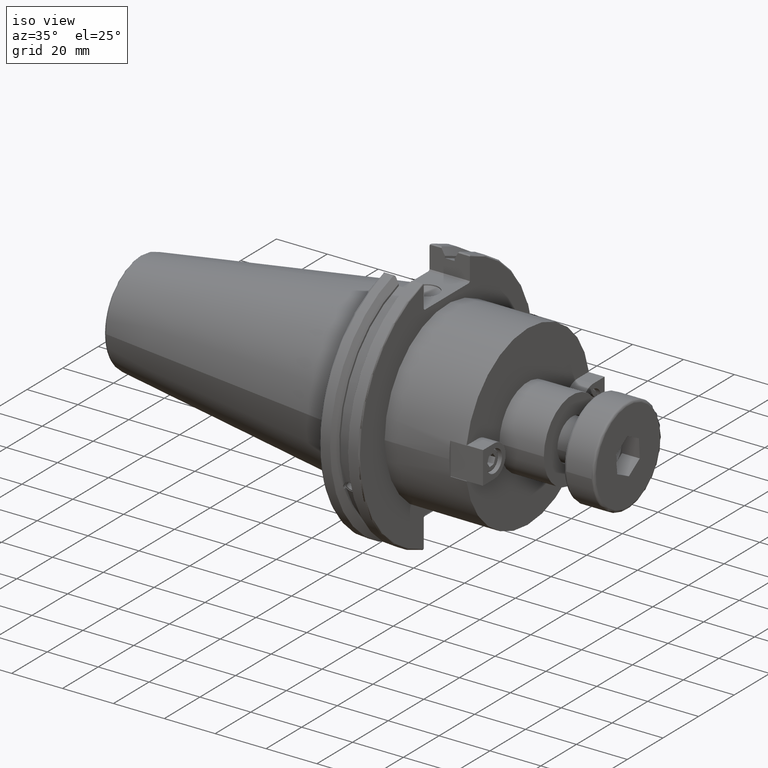
[diagram: clean part render]
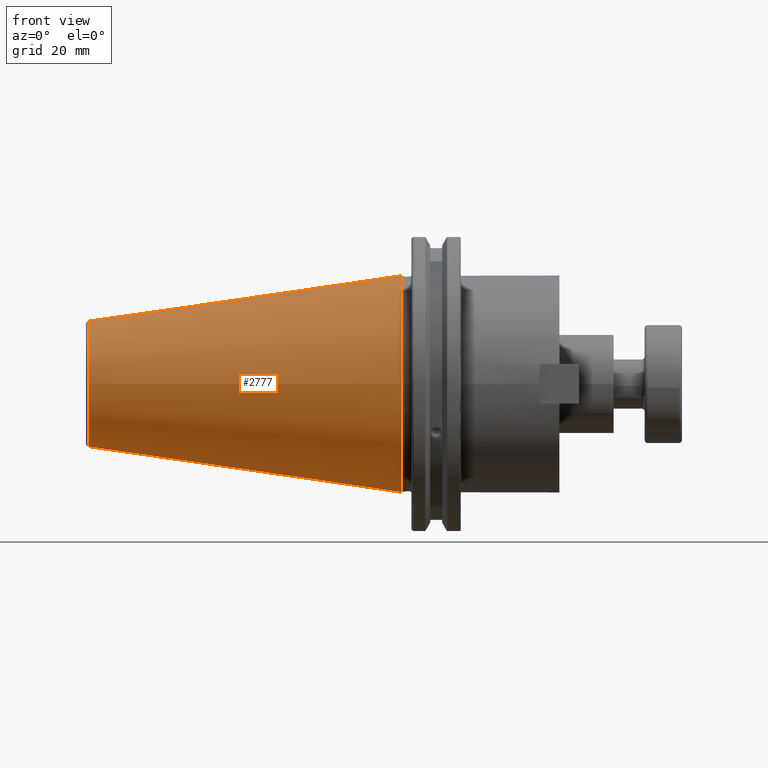
[diagram: tour spotlight — one face highlighted and labeled with its STEP entity id]
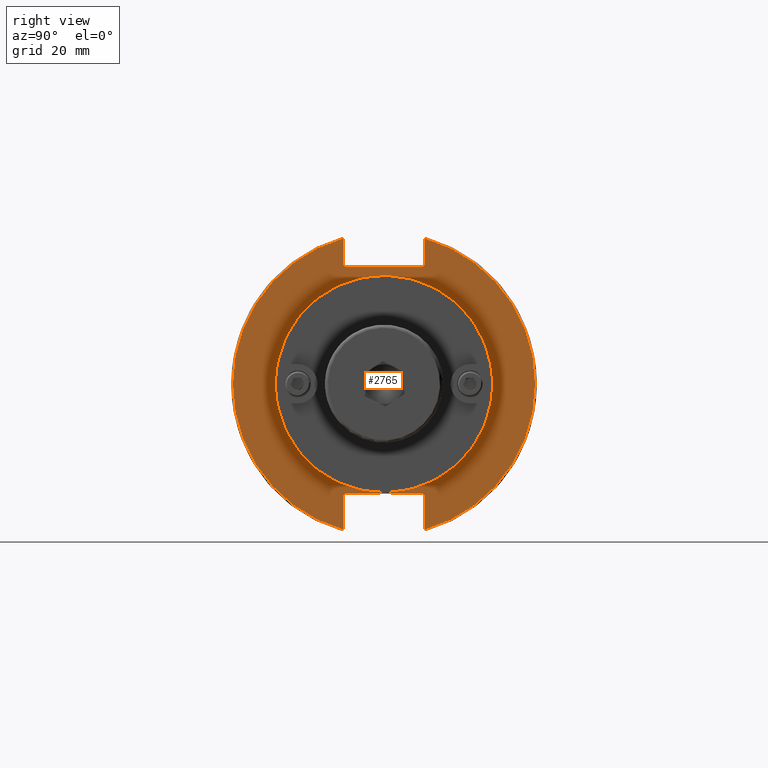
[diagram: tour spotlight — one face highlighted and labeled with its STEP entity id]
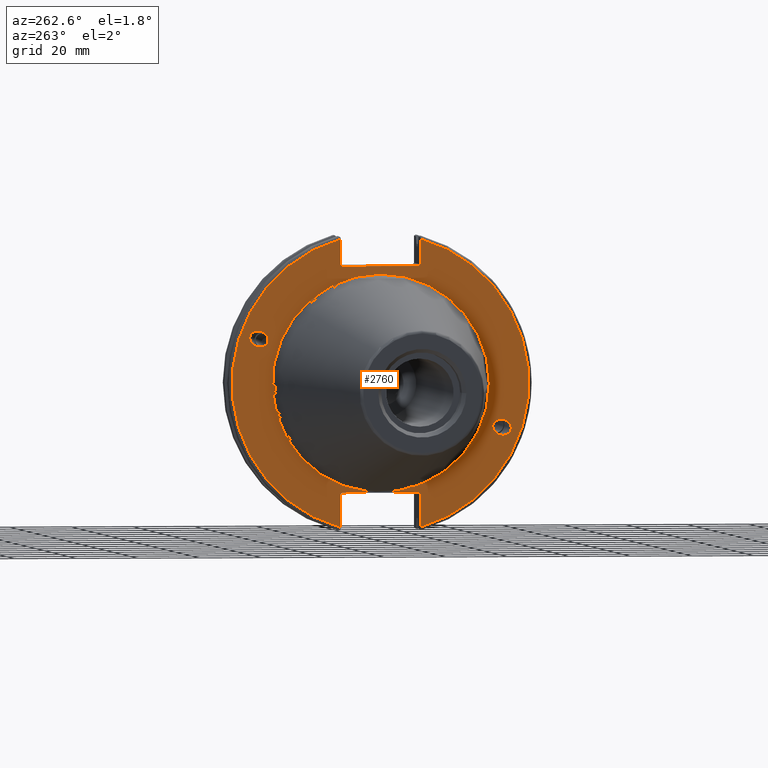
[diagram: tour spotlight — one face highlighted and labeled with its STEP entity id]
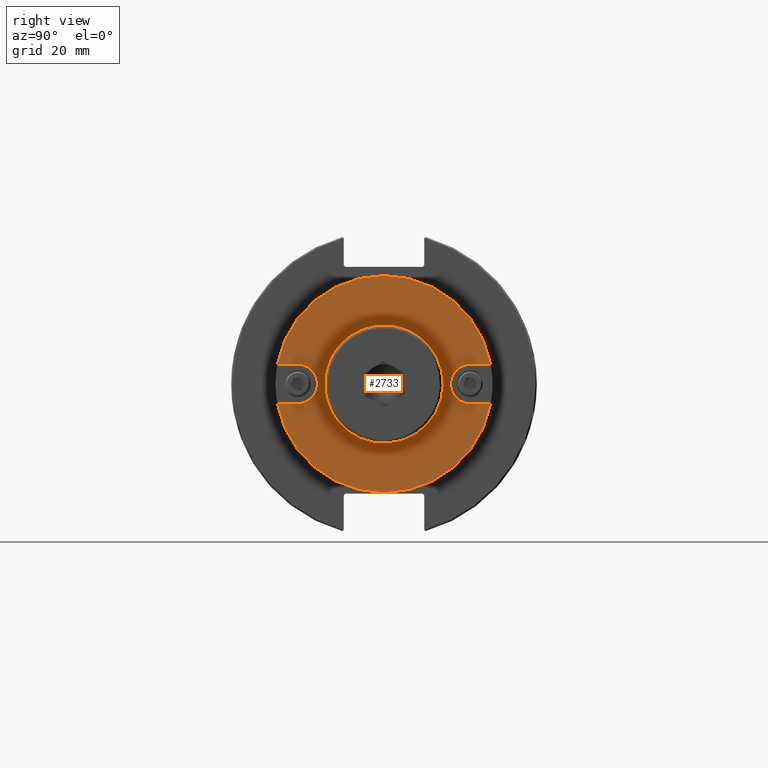
[diagram: tour spotlight — one face highlighted and labeled with its STEP entity id]
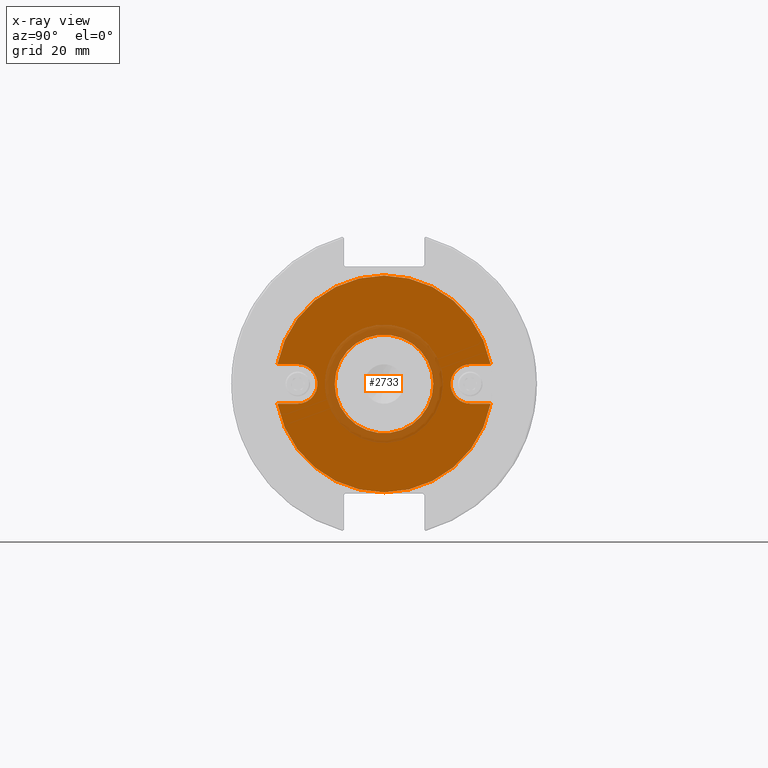
[diagram: x-ray of the same camera — body ghosted, this tour face saturated]
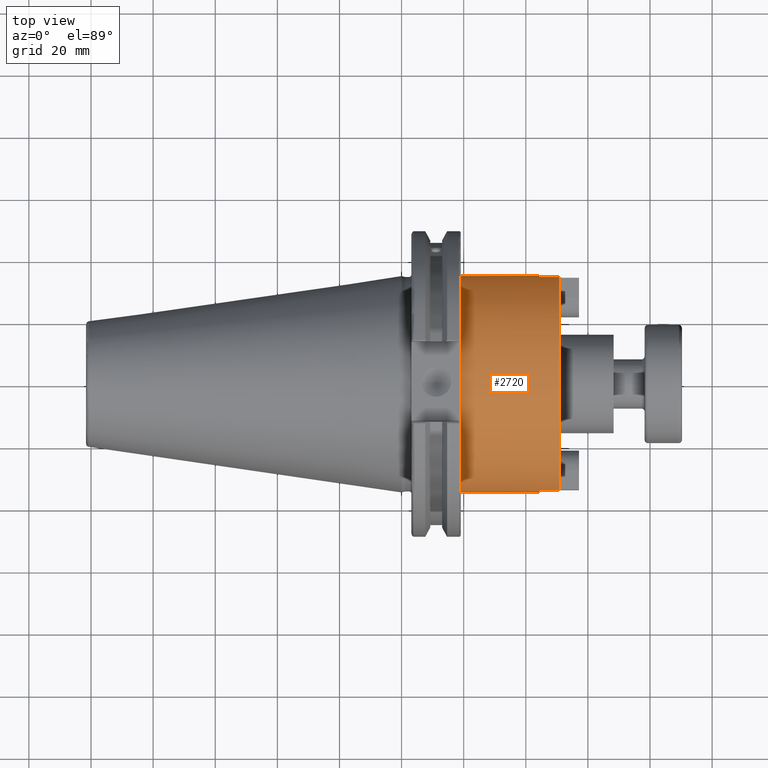
[diagram: tour spotlight — one face highlighted and labeled with its STEP entity id]
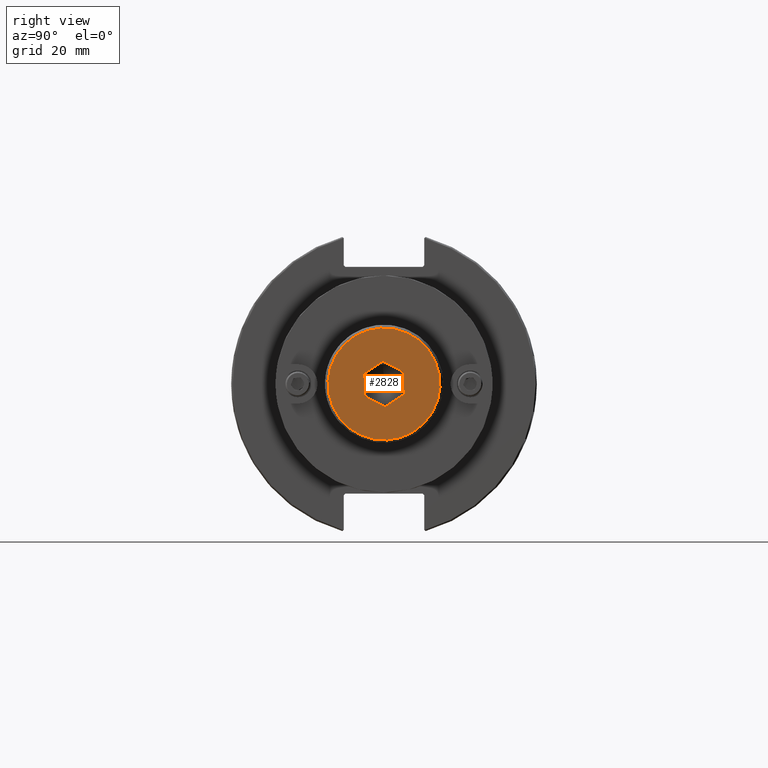
[diagram: tour spotlight — one face highlighted and labeled with its STEP entity id]
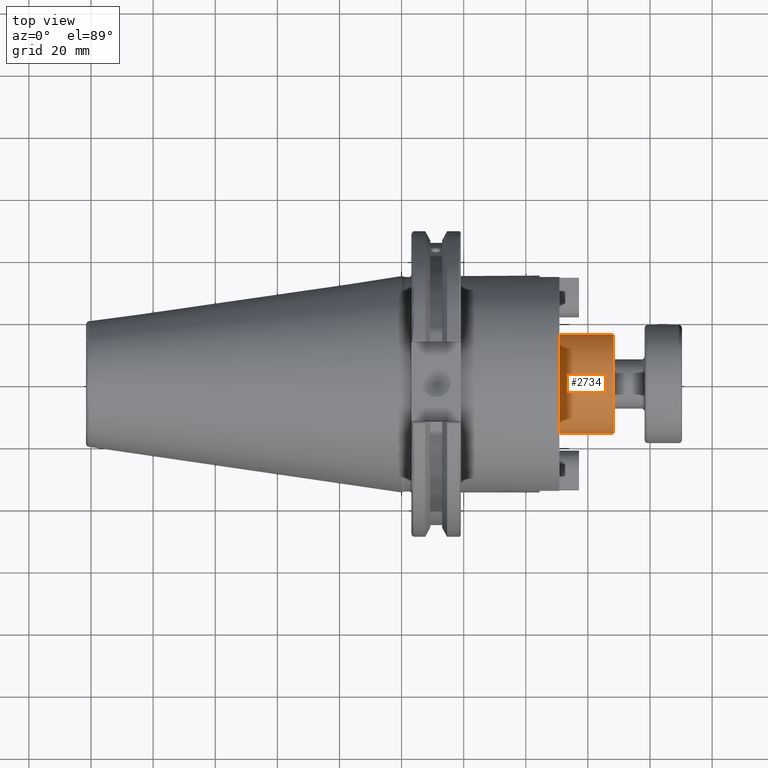
[diagram: tour spotlight — one face highlighted and labeled with its STEP entity id]
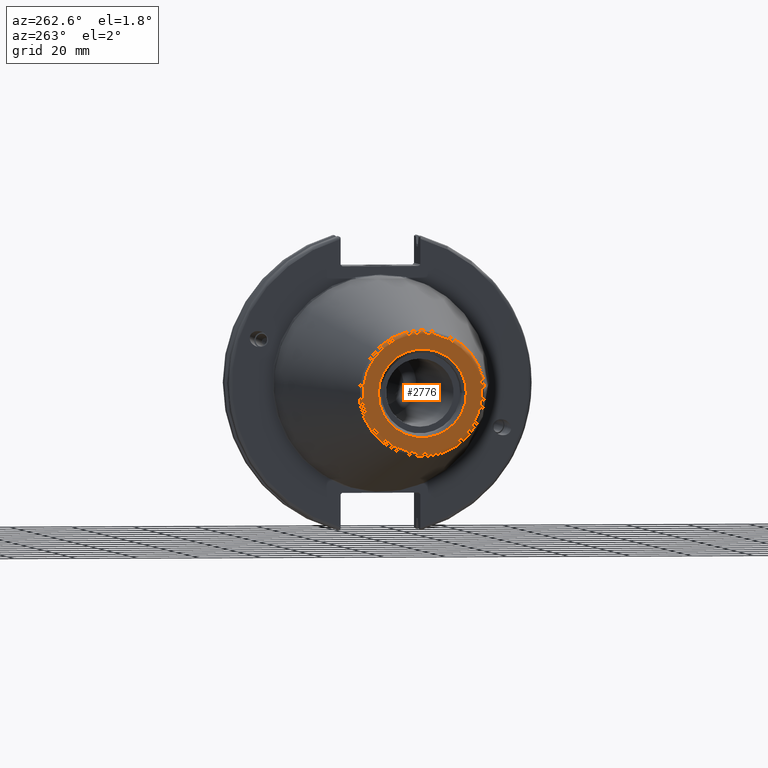
[diagram: tour spotlight — one face highlighted and labeled with its STEP entity id]
A machine part: a face-by-face anatomy tour. The part has 163 B-rep faces; the first image is the clean iso view, then the 8 largest visible faces are spotlighted one at a time (largest first), each with its STEP entity span.

Face 1 — front view, entity #2777. In plain terms, the highlighted conical surface has half-angle 8.297 deg.
Definition (entity closure, byte-faithful):
#562=CONICAL_SURFACE('',#3139,27.5166666666666,0.14481249823894);
#660=CIRCLE('',#3133,20.233121911427);
#661=CIRCLE('',#3134,20.233121911427);
#665=CIRCLE('',#3140,34.925);
#795=FACE_OUTER_BOUND('',#954,.T.);
#954=EDGE_LOOP('',(#2299,#2300,#2301,#2302,#2303));
#1132=LINE('',#5051,#1298);
#1298=VECTOR('',#3693,27.5166666666666);
#1522=VERTEX_POINT('',#5038);
#1523=VERTEX_POINT('',#5039);
#1526=VERTEX_POINT('',#5049);
#1808=EDGE_CURVE('',#1522,#1523,#660,.T.);
#1809=EDGE_CURVE('',#1523,#1522,#661,.T.);
#1813=EDGE_CURVE('',#1526,#1526,#665,.T.);
#1814=EDGE_CURVE('',#1526,#1523,#1132,.T.);
#2299=ORIENTED_EDGE('',*,*,#1813,.F.);
#2300=ORIENTED_EDGE('',*,*,#1814,.T.);
#2301=ORIENTED_EDGE('',*,*,#1808,.F.);
#2302=ORIENTED_EDGE('',*,*,#1809,.F.);
#2303=ORIENTED_EDGE('',*,*,#1814,.F.);
#2777=ADVANCED_FACE('',(#795),#562,.T.);
#3133=AXIS2_PLACEMENT_3D('',#5040,#3677,#3678);
#3134=AXIS2_PLACEMENT_3D('',#5041,#3679,#3680);
#3139=AXIS2_PLACEMENT_3D('',#5048,#3689,#3690);
#3140=AXIS2_PLACEMENT_3D('',#5050,#3691,#3692);
#3677=DIRECTION('center_axis',(-1.,0.,0.));
#3678=DIRECTION('ref_axis',(0.,-1.,3.06161699786838E-17));
#3679=DIRECTION('center_axis',(-1.,0.,0.));
#3680=DIRECTION('ref_axis',(0.,-1.,3.06161699786838E-17));
#3689=DIRECTION('center_axis',(1.,0.,0.));
#3690=DIRECTION('ref_axis',(0.,1.,0.));
#3691=DIRECTION('center_axis',(1.,0.,0.));
#3692=DIRECTION('ref_axis',(0.,0.,-1.));
#3693=DIRECTION('',(-0.989532981063281,0.144306893071729,1.76724974695192E-17));
#5038=CARTESIAN_POINT('',(-100.744306893072,-2.47784279855872E-15,20.233121911427));
#5039=CARTESIAN_POINT('',(-100.744306893072,-20.233121911427,-2.47784279855872E-15));
#5040=CARTESIAN_POINT('Origin',(-100.744306893072,0.,-3.09730349819841E-15));
#5041=CARTESIAN_POINT('Origin',(-100.744306893072,0.,-3.09730349819841E-15));
#5048=CARTESIAN_POINT('Origin',(-50.8,0.,0.));
#5049=CARTESIAN_POINT('',(-8.88178419700125E-15,-34.925,-4.27707894602213E-15));
#5050=CARTESIAN_POINT('Origin',(0.,0.,0.));
#5051=CARTESIAN_POINT('',(-50.8,-27.5166666666666,-3.3698197756538E-15));

Face 2 — right view, entity #2765. In plain terms, the highlighted planar face has unit normal (1, 0, 0).
Definition (entity closure, byte-faithful):
#590=FACE_BOUND('',#941,.T.);
#607=CIRCLE('',#3023,34.925);
#653=CIRCLE('',#3113,48.7125);
#655=CIRCLE('',#3118,48.7125);
#783=FACE_OUTER_BOUND('',#940,.T.);
#940=EDGE_LOOP('',(#2221,#2222,#2223,#2224,#2225,#2226,#2227,#2228,#2229,
#2230,#2231,#2232));
#941=EDGE_LOOP('',(#2233));
#1104=LINE('',#4862,#1270);
#1110=LINE('',#4884,#1276);
#1111=LINE('',#4886,#1277);
#1112=LINE('',#4888,#1278);
#1113=LINE('',#4890,#1279);
#1114=LINE('',#4892,#1280);
#1115=LINE('',#4896,#1281);
#1116=LINE('',#4898,#1282);
#1117=LINE('',#4900,#1283);
#1118=LINE('',#4901,#1284);
#1270=VECTOR('',#3617,10.);
#1276=VECTOR('',#3625,10.);
#1277=VECTOR('',#3626,10.);
#1278=VECTOR('',#3627,10.);
#1279=VECTOR('',#3628,10.);
#1280=VECTOR('',#3629,10.);
#1281=VECTOR('',#3632,10.);
#1282=VECTOR('',#3633,10.);
#1283=VECTOR('',#3634,10.);
#1284=VECTOR('',#3635,10.);
#1383=VERTEX_POINT('',#4189);
#1483=VERTEX_POINT('',#4822);
#1484=VERTEX_POINT('',#4827);
#1488=VERTEX_POINT('',#4861);
#1494=VERTEX_POINT('',#4883);
#1495=VERTEX_POINT('',#4885);
#1496=VERTEX_POINT('',#4887);
#1497=VERTEX_POINT('',#4889);
#1498=VERTEX_POINT('',#4891);
#1499=VERTEX_POINT('',#4893);
#1500=VERTEX_POINT('',#4895);
#1501=VERTEX_POINT('',#4897);
#1502=VERTEX_POINT('',#4899);
#1620=EDGE_CURVE('',#1383,#1383,#607,.T.);
#1751=EDGE_CURVE('',#1483,#1484,#653,.T.);
#1758=EDGE_CURVE('',#1488,#1484,#1104,.T.);
#1766=EDGE_CURVE('',#1483,#1494,#1110,.T.);
#1767=EDGE_CURVE('',#1495,#1494,#1111,.T.);
#1768=EDGE_CURVE('',#1495,#1496,#1112,.T.);
#1769=EDGE_CURVE('',#1497,#1496,#1113,.T.);
#1770=EDGE_CURVE('',#1497,#1498,#1114,.T.);
#1771=EDGE_CURVE('',#1499,#1498,#655,.T.);
#1772=EDGE_CURVE('',#1499,#1500,#1115,.T.);
#1773=EDGE_CURVE('',#1501,#1500,#1116,.T.);
#1774=EDGE_CURVE('',#1501,#1502,#1117,.T.);
#1775=EDGE_CURVE('',#1488,#1502,#1118,.T.);
#2221=ORIENTED_EDGE('',*,*,#1751,.F.);
#2222=ORIENTED_EDGE('',*,*,#1766,.T.);
#2223=ORIENTED_EDGE('',*,*,#1767,.F.);
#2224=ORIENTED_EDGE('',*,*,#1768,.T.);
#2225=ORIENTED_EDGE('',*,*,#1769,.F.);
#2226=ORIENTED_EDGE('',*,*,#1770,.T.);
#2227=ORIENTED_EDGE('',*,*,#1771,.F.);
#2228=ORIENTED_EDGE('',*,*,#1772,.T.);
#2229=ORIENTED_EDGE('',*,*,#1773,.F.);
#2230=ORIENTED_EDGE('',*,*,#1774,.T.);
#2231=ORIENTED_EDGE('',*,*,#1775,.F.);
#2232=ORIENTED_EDGE('',*,*,#1758,.T.);
#2233=ORIENTED_EDGE('',*,*,#1620,.T.);
#2661=PLANE('',#3117);
#2765=ADVANCED_FACE('',(#783,#590),#2661,.T.);
#3023=AXIS2_PLACEMENT_3D('',#4191,#3375,#3376);
#3113=AXIS2_PLACEMENT_3D('',#4828,#3607,#3608);
#3117=AXIS2_PLACEMENT_3D('',#4882,#3623,#3624);
#3118=AXIS2_PLACEMENT_3D('',#4894,#3630,#3631);
#3375=DIRECTION('center_axis',(-1.,0.,0.));
#3376=DIRECTION('ref_axis',(0.,1.,0.));
#3607=DIRECTION('center_axis',(-1.,0.,0.));
#3608=DIRECTION('ref_axis',(0.,-1.,1.60812264967664E-16));
#3617=DIRECTION('',(0.,0.,1.));
#3623=DIRECTION('center_axis',(1.,0.,0.));
#3624=DIRECTION('ref_axis',(0.,0.,-1.));
#3625=DIRECTION('',(0.,0.,1.));
#3626=DIRECTION('',(0.,-0.707106781186549,-0.707106781186546));
#3627=DIRECTION('',(0.,1.,0.));
#3628=DIRECTION('',(0.,-0.707106781186549,0.707106781186546));
#3629=DIRECTION('',(0.,0.,-1.));
#3630=DIRECTION('center_axis',(-1.,0.,0.));
#3631=DIRECTION('ref_axis',(0.,1.,-6.12323399573677E-17));
#3632=DIRECTION('',(0.,0.,-1.));
#3633=DIRECTION('',(0.,0.707106781186549,0.707106781186546));
#3634=DIRECTION('',(0.,-1.,0.));
#3635=DIRECTION('',(0.,0.707106781186549,-0.707106781186546));
#4189=CARTESIAN_POINT('',(19.05,-34.925,-4.27707894602213E-15));
#4191=CARTESIAN_POINT('Origin',(19.05,0.,0.));
#4822=CARTESIAN_POINT('',(19.05,-12.95,-46.9596119686907));
#4827=CARTESIAN_POINT('',(19.05,-12.95,46.9596119686907));
#4828=CARTESIAN_POINT('Origin',(19.05,0.,0.));
#4861=CARTESIAN_POINT('',(19.05,-12.95,38.219));
#4862=CARTESIAN_POINT('',(19.05,-12.95,18.8595));
#4882=CARTESIAN_POINT('Origin',(19.05,0.,0.));
#4883=CARTESIAN_POINT('',(19.05,-12.95,-35.806));
#4884=CARTESIAN_POINT('',(19.05,-12.95,-17.653));
#4885=CARTESIAN_POINT('',(19.05,-12.45,-35.306));
#4886=CARTESIAN_POINT('',(19.05,-0.635999999999989,-23.492));
#4887=CARTESIAN_POINT('',(19.05,12.45,-35.306));
#4888=CARTESIAN_POINT('',(19.05,-3.33066907387547E-15,-35.306));
#4889=CARTESIAN_POINT('',(19.05,12.95,-35.806));
#4890=CARTESIAN_POINT('',(19.05,0.635999999999982,-23.492));
#4891=CARTESIAN_POINT('',(19.05,12.95,-46.9596119686907));
#4892=CARTESIAN_POINT('',(19.05,12.95,-17.653));
#4893=CARTESIAN_POINT('',(19.05,12.95,46.9596119686907));
#4894=CARTESIAN_POINT('Origin',(19.05,0.,0.));
#4895=CARTESIAN_POINT('',(19.05,12.95,38.219));
#4896=CARTESIAN_POINT('',(19.05,12.95,18.8595));
#4897=CARTESIAN_POINT('',(19.05,12.45,37.719));
#4898=CARTESIAN_POINT('',(19.05,0.0327499999999836,25.30175));
#4899=CARTESIAN_POINT('',(19.05,-12.45,37.719));
#4900=CARTESIAN_POINT('',(19.05,0.,37.719));
#4901=CARTESIAN_POINT('',(19.05,-0.0327499999999817,25.30175));

Face 3 — auxiliary view, entity #2760. In plain terms, the highlighted planar face has unit normal (-1, 0, 0).
Definition (entity closure, byte-faithful):
#477=ELLIPSE('',#3067,3.05193647190364,2.5);
#478=ELLIPSE('',#3101,3.05193647190364,2.5);
#587=FACE_BOUND('',#933,.T.);
#588=FACE_BOUND('',#934,.T.);
#589=FACE_BOUND('',#935,.T.);
#648=CIRCLE('',#3105,35.125);
#650=CIRCLE('',#3108,48.2125);
#651=CIRCLE('',#3109,48.2125);
#778=FACE_OUTER_BOUND('',#932,.T.);
#932=EDGE_LOOP('',(#2179,#2180,#2181,#2182,#2183,#2184,#2185,#2186,#2187,
#2188,#2189,#2190));
#933=EDGE_LOOP('',(#2191));
#934=EDGE_LOOP('',(#2192));
#935=EDGE_LOOP('',(#2193));
#1091=LINE('',#4796,#1257);
#1092=LINE('',#4798,#1258);
#1093=LINE('',#4800,#1259);
#1094=LINE('',#4802,#1260);
#1095=LINE('',#4804,#1261);
#1096=LINE('',#4808,#1262);
#1097=LINE('',#4810,#1263);
#1098=LINE('',#4812,#1264);
#1099=LINE('',#4814,#1265);
#1100=LINE('',#4815,#1266);
#1257=VECTOR('',#3588,10.);
#1258=VECTOR('',#3589,10.);
#1259=VECTOR('',#3590,10.);
#1260=VECTOR('',#3591,10.);
#1261=VECTOR('',#3592,10.);
#1262=VECTOR('',#3595,10.);
#1263=VECTOR('',#3596,10.);
#1264=VECTOR('',#3597,10.);
#1265=VECTOR('',#3598,10.);
#1266=VECTOR('',#3599,10.);
#1427=VERTEX_POINT('',#4521);
#1465=VERTEX_POINT('',#4780);
#1468=VERTEX_POINT('',#4787);
#1469=VERTEX_POINT('',#4792);
#1470=VERTEX_POINT('',#4793);
#1471=VERTEX_POINT('',#4795);
#1472=VERTEX_POINT('',#4797);
#1473=VERTEX_POINT('',#4799);
#1474=VERTEX_POINT('',#4801);
#1475=VERTEX_POINT('',#4803);
#1476=VERTEX_POINT('',#4805);
#1477=VERTEX_POINT('',#4807);
#1478=VERTEX_POINT('',#4809);
#1479=VERTEX_POINT('',#4811);
#1480=VERTEX_POINT('',#4813);
#1680=EDGE_CURVE('',#1427,#1427,#477,.T.);
#1731=EDGE_CURVE('',#1465,#1465,#478,.T.);
#1734=EDGE_CURVE('',#1468,#1468,#648,.T.);
#1736=EDGE_CURVE('',#1469,#1470,#650,.T.);
#1737=EDGE_CURVE('',#1469,#1471,#1091,.T.);
#1738=EDGE_CURVE('',#1472,#1471,#1092,.T.);
#1739=EDGE_CURVE('',#1472,#1473,#1093,.T.);
#1740=EDGE_CURVE('',#1474,#1473,#1094,.T.);
#1741=EDGE_CURVE('',#1474,#1475,#1095,.T.);
#1742=EDGE_CURVE('',#1476,#1475,#651,.T.);
#1743=EDGE_CURVE('',#1476,#1477,#1096,.T.);
#1744=EDGE_CURVE('',#1478,#1477,#1097,.T.);
#1745=EDGE_CURVE('',#1478,#1479,#1098,.T.);
#1746=EDGE_CURVE('',#1480,#1479,#1099,.T.);
#1747=EDGE_CURVE('',#1480,#1470,#1100,.T.);
#2179=ORIENTED_EDGE('',*,*,#1736,.F.);
#2180=ORIENTED_EDGE('',*,*,#1737,.T.);
#2181=ORIENTED_EDGE('',*,*,#1738,.F.);
#2182=ORIENTED_EDGE('',*,*,#1739,.T.);
#2183=ORIENTED_EDGE('',*,*,#1740,.F.);
#2184=ORIENTED_EDGE('',*,*,#1741,.T.);
#2185=ORIENTED_EDGE('',*,*,#1742,.F.);
#2186=ORIENTED_EDGE('',*,*,#1743,.T.);
#2187=ORIENTED_EDGE('',*,*,#1744,.F.);
#2188=ORIENTED_EDGE('',*,*,#1745,.T.);
#2189=ORIENTED_EDGE('',*,*,#1746,.F.);
#2190=ORIENTED_EDGE('',*,*,#1747,.T.);
#2191=ORIENTED_EDGE('',*,*,#1680,.T.);
#2192=ORIENTED_EDGE('',*,*,#1731,.T.);
#2193=ORIENTED_EDGE('',*,*,#1734,.F.);
#2658=PLANE('',#3107);
#2760=ADVANCED_FACE('',(#778,#587,#588,#589),#2658,.T.);
#3067=AXIS2_PLACEMENT_3D('',#4523,#3488,#3489);
#3101=AXIS2_PLACEMENT_3D('',#4782,#3572,#3573);
#3105=AXIS2_PLACEMENT_3D('',#4789,#3580,#3581);
#3107=AXIS2_PLACEMENT_3D('',#4791,#3584,#3585);
#3108=AXIS2_PLACEMENT_3D('',#4794,#3586,#3587);
#3109=AXIS2_PLACEMENT_3D('',#4806,#3593,#3594);
#3488=DIRECTION('center_axis',(1.,0.,0.));
#3489=DIRECTION('ref_axis',(0.,-0.939692620785908,-0.342020143325668));
#3572=DIRECTION('center_axis',(1.,0.,0.));
#3573=DIRECTION('ref_axis',(0.,0.939692620785908,0.342020143325669));
#3580=DIRECTION('center_axis',(-1.,0.,0.));
#3581=DIRECTION('ref_axis',(0.,-1.,1.83697019872103E-16));
#3584=DIRECTION('center_axis',(-1.,0.,0.));
#3585=DIRECTION('ref_axis',(0.,0.,1.));
#3586=DIRECTION('center_axis',(1.,0.,0.));
#3587=DIRECTION('ref_axis',(0.,-1.,1.60812264967664E-16));
#3588=DIRECTION('',(0.,0.,-1.));
#3589=DIRECTION('',(0.,-0.707106781186549,0.707106781186546));
#3590=DIRECTION('',(0.,1.,0.));
#3591=DIRECTION('',(0.,-0.707106781186549,-0.707106781186546));
#3592=DIRECTION('',(0.,0.,1.));
#3593=DIRECTION('center_axis',(1.,0.,0.));
#3594=DIRECTION('ref_axis',(0.,1.,-6.12323399573677E-17));
#3595=DIRECTION('',(0.,0.,1.));
#3596=DIRECTION('',(0.,0.707106781186549,-0.707106781186546));
#3597=DIRECTION('',(0.,-1.,0.));
#3598=DIRECTION('',(0.,0.707106781186549,0.707106781186546));
#3599=DIRECTION('',(0.,0.,-1.));
#4521=CARTESIAN_POINT('',(3.175,-36.5992078912529,-13.3210222701368));
#4523=CARTESIAN_POINT('Origin',(3.175,-39.4670900730082,-14.3648460196781));
#4780=CARTESIAN_POINT('',(3.175,36.5992078912529,13.3210222701368));
#4782=CARTESIAN_POINT('Origin',(3.175,39.4670900730082,14.3648460196781));
#4787=CARTESIAN_POINT('',(3.175,-4.30157188200508E-15,35.125));
#4789=CARTESIAN_POINT('Origin',(3.175,0.,0.));
#4791=CARTESIAN_POINT('Origin',(3.175,49.2125,0.));
#4792=CARTESIAN_POINT('',(3.175,-12.95,46.4407434937254));
#4793=CARTESIAN_POINT('',(3.175,-12.95,-46.4407434937254));
#4794=CARTESIAN_POINT('Origin',(3.175,0.,0.));
#4795=CARTESIAN_POINT('',(3.175,-12.95,38.219));
#4796=CARTESIAN_POINT('',(3.175,-12.95,18.8595));
#4797=CARTESIAN_POINT('',(3.175,-12.45,37.719));
#4798=CARTESIAN_POINT('',(3.175,12.2703750000001,12.998625));
#4799=CARTESIAN_POINT('',(3.175,12.45,37.719));
#4800=CARTESIAN_POINT('',(3.175,24.60625,37.719));
#4801=CARTESIAN_POINT('',(3.175,12.95,38.219));
#4802=CARTESIAN_POINT('',(3.175,12.335875,37.604875));
#4803=CARTESIAN_POINT('',(3.175,12.95,46.4407434937254));
#4804=CARTESIAN_POINT('',(3.175,12.95,18.8595));
#4805=CARTESIAN_POINT('',(3.175,12.95,-46.4407434937254));
#4806=CARTESIAN_POINT('Origin',(3.175,0.,0.));
#4807=CARTESIAN_POINT('',(3.175,12.95,-35.806));
#4808=CARTESIAN_POINT('',(3.175,12.95,-17.653));
#4809=CARTESIAN_POINT('',(3.175,12.45,-35.306));
#4810=CARTESIAN_POINT('',(3.175,12.939125,-35.795125));
#4811=CARTESIAN_POINT('',(3.175,-12.45,-35.306));
#4812=CARTESIAN_POINT('',(3.175,24.60625,-35.306));
#4813=CARTESIAN_POINT('',(3.175,-12.95,-35.806));
#4814=CARTESIAN_POINT('',(3.175,11.6671250000001,-11.188875));
#4815=CARTESIAN_POINT('',(3.175,-12.95,-17.653));

Face 4 — right view, entity #2733. An x-ray twin of the same camera follows (body ghosted, this face saturated) — the face is partly hidden behind the body. In plain terms, the highlighted planar face has unit normal (1, 0, 0).
Definition (entity closure, byte-faithful):
#578=FACE_BOUND('',#897,.T.);
#606=CIRCLE('',#3020,6.35000000000001);
#608=CIRCLE('',#3024,34.925);
#610=CIRCLE('',#3026,34.925);
#614=CIRCLE('',#3035,6.35000000000001);
#623=CIRCLE('',#3052,15.875);
#751=FACE_OUTER_BOUND('',#896,.T.);
#896=EDGE_LOOP('',(#2036,#2037,#2038,#2039,#2040,#2041,#2042,#2043));
#897=EDGE_LOOP('',(#2044));
#1040=LINE('',#4159,#1206);
#1048=LINE('',#4187,#1214);
#1054=LINE('',#4212,#1220);
#1059=LINE('',#4225,#1225);
#1206=VECTOR('',#3341,10.);
#1214=VECTOR('',#3371,10.);
#1220=VECTOR('',#3397,10.);
#1225=VECTOR('',#3412,10.);
#1371=VERTEX_POINT('',#4155);
#1373=VERTEX_POINT('',#4158);
#1381=VERTEX_POINT('',#4181);
#1382=VERTEX_POINT('',#4185);
#1384=VERTEX_POINT('',#4192);
#1387=VERTEX_POINT('',#4198);
#1391=VERTEX_POINT('',#4211);
#1394=VERTEX_POINT('',#4221);
#1407=VERTEX_POINT('',#4329);
#1604=EDGE_CURVE('',#1373,#1371,#1040,.T.);
#1615=EDGE_CURVE('',#1381,#1373,#606,.T.);
#1618=EDGE_CURVE('',#1382,#1381,#1048,.T.);
#1621=EDGE_CURVE('',#1384,#1382,#608,.T.);
#1625=EDGE_CURVE('',#1371,#1387,#610,.T.);
#1630=EDGE_CURVE('',#1391,#1384,#1054,.T.);
#1635=EDGE_CURVE('',#1394,#1391,#614,.T.);
#1637=EDGE_CURVE('',#1387,#1394,#1059,.T.);
#1654=EDGE_CURVE('',#1407,#1407,#623,.T.);
#2036=ORIENTED_EDGE('',*,*,#1604,.T.);
#2037=ORIENTED_EDGE('',*,*,#1625,.T.);
#2038=ORIENTED_EDGE('',*,*,#1637,.T.);
#2039=ORIENTED_EDGE('',*,*,#1635,.T.);
#2040=ORIENTED_EDGE('',*,*,#1630,.T.);
#2041=ORIENTED_EDGE('',*,*,#1621,.T.);
#2042=ORIENTED_EDGE('',*,*,#1618,.T.);
#2043=ORIENTED_EDGE('',*,*,#1615,.T.);
#2044=ORIENTED_EDGE('',*,*,#1654,.F.);
#2649=PLANE('',#3051);
#2733=ADVANCED_FACE('',(#751,#578),#2649,.T.);
#3020=AXIS2_PLACEMENT_3D('',#4182,#3365,#3366);
#3024=AXIS2_PLACEMENT_3D('',#4193,#3377,#3378);
#3026=AXIS2_PLACEMENT_3D('',#4200,#3383,#3384);
#3035=AXIS2_PLACEMENT_3D('',#4222,#3407,#3408);
#3051=AXIS2_PLACEMENT_3D('',#4328,#3445,#3446);
#3052=AXIS2_PLACEMENT_3D('',#4330,#3447,#3448);
#3341=DIRECTION('',(0.,-1.,1.87200716336027E-16));
#3365=DIRECTION('center_axis',(-1.,0.,0.));
#3366=DIRECTION('ref_axis',(0.,-1.22464679914735E-16,-1.));
#3371=DIRECTION('',(0.,1.,-5.77286434934434E-17));
#3377=DIRECTION('center_axis',(1.,0.,0.));
#3378=DIRECTION('ref_axis',(0.,0.,-1.));
#3383=DIRECTION('center_axis',(1.,0.,0.));
#3384=DIRECTION('ref_axis',(0.,0.,-1.));
#3397=DIRECTION('',(0.,1.,-6.4736036421292E-17));
#3407=DIRECTION('center_axis',(-1.,0.,0.));
#3408=DIRECTION('ref_axis',(0.,0.,1.));
#3412=DIRECTION('',(0.,-1.,-6.4736036421292E-17));
#3445=DIRECTION('center_axis',(1.,0.,0.));
#3446=DIRECTION('ref_axis',(0.,0.,-1.));
#3447=DIRECTION('center_axis',(1.,0.,0.));
#3448=DIRECTION('ref_axis',(0.,0.,-1.));
#4155=CARTESIAN_POINT('',(50.8,-34.3428758987945,-6.35));
#4158=CARTESIAN_POINT('',(50.8,-27.775,-6.35));
#4159=CARTESIAN_POINT('',(50.8,-5.95,-6.35));
#4181=CARTESIAN_POINT('',(50.8,-27.775,6.35000000000001));
#4182=CARTESIAN_POINT('Origin',(50.8,-27.775,7.9131359938887E-15));
#4185=CARTESIAN_POINT('',(50.8,-34.3428758987945,6.35000000000001));
#4187=CARTESIAN_POINT('',(50.8,-14.525,6.35000000000001));
#4192=CARTESIAN_POINT('',(50.8,34.3428758987945,6.35));
#4193=CARTESIAN_POINT('Origin',(50.8,0.,0.));
#4198=CARTESIAN_POINT('',(50.8,34.3428758987945,-6.35));
#4200=CARTESIAN_POINT('Origin',(50.8,0.,0.));
#4211=CARTESIAN_POINT('',(50.8,27.775,6.35));
#4212=CARTESIAN_POINT('',(50.8,21.825,6.35));
#4221=CARTESIAN_POINT('',(50.8,27.775,-6.35));
#4222=CARTESIAN_POINT('Origin',(50.8,27.775,-4.51167950925693E-15));
#4225=CARTESIAN_POINT('',(50.8,30.4,-6.35));
#4328=CARTESIAN_POINT('Origin',(50.8,15.875,0.));
#4329=CARTESIAN_POINT('',(50.8,-15.875,-1.94412679364642E-15));
#4330=CARTESIAN_POINT('Origin',(50.8,0.,0.));

Face 5 — top view, entity #2720. In plain terms, the highlighted cylindrical surface (bore or boss wall) has radius 34.925 mm, axis along (1, 0, 0).
Definition (entity closure, byte-faithful):
#519=CYLINDRICAL_SURFACE('',#3022,34.925);
#601=CIRCLE('',#3012,34.925);
#603=CIRCLE('',#3014,34.925);
#607=CIRCLE('',#3023,34.925);
#608=CIRCLE('',#3024,34.925);
#609=CIRCLE('',#3025,34.925);
#610=CIRCLE('',#3026,34.925);
#738=FACE_OUTER_BOUND('',#878,.T.);
#878=EDGE_LOOP('',(#1974,#1975,#1976,#1977,#1978,#1979,#1980,#1981,#1982,
#1983,#1984,#1985));
#1039=LINE('',#4157,#1205);
#1047=LINE('',#4186,#1213);
#1049=LINE('',#4190,#1215);
#1050=LINE('',#4195,#1216);
#1051=LINE('',#4199,#1217);
#1205=VECTOR('',#3340,10.);
#1213=VECTOR('',#3370,10.);
#1215=VECTOR('',#3374,34.925);
#1216=VECTOR('',#3379,10.);
#1217=VECTOR('',#3382,10.);
#1371=VERTEX_POINT('',#4155);
#1372=VERTEX_POINT('',#4156);
#1375=VERTEX_POINT('',#4164);
#1377=VERTEX_POINT('',#4168);
#1382=VERTEX_POINT('',#4185);
#1383=VERTEX_POINT('',#4189);
#1384=VERTEX_POINT('',#4192);
#1385=VERTEX_POINT('',#4194);
#1386=VERTEX_POINT('',#4196);
#1387=VERTEX_POINT('',#4198);
#1603=EDGE_CURVE('',#1371,#1372,#1039,.T.);
#1607=EDGE_CURVE('',#1372,#1375,#601,.T.);
#1610=EDGE_CURVE('',#1375,#1377,#603,.T.);
#1617=EDGE_CURVE('',#1377,#1382,#1047,.T.);
#1619=EDGE_CURVE('',#1375,#1383,#1049,.T.);
#1620=EDGE_CURVE('',#1383,#1383,#607,.T.);
#1621=EDGE_CURVE('',#1384,#1382,#608,.T.);
#1622=EDGE_CURVE('',#1384,#1385,#1050,.T.);
#1623=EDGE_CURVE('',#1385,#1386,#609,.T.);
#1624=EDGE_CURVE('',#1386,#1387,#1051,.T.);
#1625=EDGE_CURVE('',#1371,#1387,#610,.T.);
#1974=ORIENTED_EDGE('',*,*,#1603,.T.);
#1975=ORIENTED_EDGE('',*,*,#1607,.T.);
#1976=ORIENTED_EDGE('',*,*,#1619,.T.);
#1977=ORIENTED_EDGE('',*,*,#1620,.F.);
#1978=ORIENTED_EDGE('',*,*,#1619,.F.);
#1979=ORIENTED_EDGE('',*,*,#1610,.T.);
#1980=ORIENTED_EDGE('',*,*,#1617,.T.);
#1981=ORIENTED_EDGE('',*,*,#1621,.F.);
#1982=ORIENTED_EDGE('',*,*,#1622,.T.);
#1983=ORIENTED_EDGE('',*,*,#1623,.T.);
#1984=ORIENTED_EDGE('',*,*,#1624,.T.);
#1985=ORIENTED_EDGE('',*,*,#1625,.F.);
#2720=ADVANCED_FACE('',(#738),#519,.T.);
#3012=AXIS2_PLACEMENT_3D('',#4165,#3346,#3347);
#3014=AXIS2_PLACEMENT_3D('',#4170,#3351,#3352);
#3022=AXIS2_PLACEMENT_3D('',#4188,#3372,#3373);
#3023=AXIS2_PLACEMENT_3D('',#4191,#3375,#3376);
#3024=AXIS2_PLACEMENT_3D('',#4193,#3377,#3378);
#3025=AXIS2_PLACEMENT_3D('',#4197,#3380,#3381);
#3026=AXIS2_PLACEMENT_3D('',#4200,#3383,#3384);
#3340=DIRECTION('',(-1.,0.,0.));
#3346=DIRECTION('center_axis',(-1.,0.,0.));
#3347=DIRECTION('ref_axis',(0.,1.,0.));
#3351=DIRECTION('center_axis',(-1.,0.,0.));
#3352=DIRECTION('ref_axis',(0.,1.,0.));
#3370=DIRECTION('',(1.,0.,0.));
#3372=DIRECTION('center_axis',(1.,0.,0.));
#3373=DIRECTION('ref_axis',(0.,1.,0.));
#3374=DIRECTION('',(-1.,0.,0.));
#3375=DIRECTION('center_axis',(-1.,0.,0.));
#3376=DIRECTION('ref_axis',(0.,1.,0.));
#3377=DIRECTION('center_axis',(1.,0.,0.));
#3378=DIRECTION('ref_axis',(0.,0.,-1.));
#3379=DIRECTION('',(-1.,0.,0.));
#3380=DIRECTION('center_axis',(-1.,0.,0.));
#3381=DIRECTION('ref_axis',(0.,1.,0.));
#3382=DIRECTION('',(1.,0.,0.));
#3383=DIRECTION('center_axis',(1.,0.,0.));
#3384=DIRECTION('ref_axis',(0.,0.,-1.));
#4155=CARTESIAN_POINT('',(50.8,-34.3428758987945,-6.35));
#4156=CARTESIAN_POINT('',(44.45,-34.3428758987945,-6.35));
#4157=CARTESIAN_POINT('',(34.925,-34.3428758987945,-6.35));
#4164=CARTESIAN_POINT('',(44.45,-34.925,-4.27707894602213E-15));
#4165=CARTESIAN_POINT('Origin',(44.45,0.,0.));
#4168=CARTESIAN_POINT('',(44.45,-34.3428758987945,6.35000000000001));
#4170=CARTESIAN_POINT('Origin',(44.45,0.,0.));
#4185=CARTESIAN_POINT('',(50.8,-34.3428758987945,6.35000000000001));
#4186=CARTESIAN_POINT('',(34.925,-34.3428758987945,6.35000000000001));
#4188=CARTESIAN_POINT('Origin',(34.925,0.,0.));
#4189=CARTESIAN_POINT('',(19.05,-34.925,-4.27707894602213E-15));
#4190=CARTESIAN_POINT('',(34.925,-34.925,-4.27707894602213E-15));
#4191=CARTESIAN_POINT('Origin',(19.05,0.,0.));
#4192=CARTESIAN_POINT('',(50.8,34.3428758987945,6.35));
#4193=CARTESIAN_POINT('Origin',(50.8,0.,0.));
#4194=CARTESIAN_POINT('',(44.45,34.3428758987945,6.35));
#4195=CARTESIAN_POINT('',(34.925,34.3428758987945,6.35));
#4196=CARTESIAN_POINT('',(44.45,34.3428758987945,-6.35));
#4197=CARTESIAN_POINT('Origin',(44.45,0.,0.));
#4198=CARTESIAN_POINT('',(50.8,34.3428758987945,-6.35));
#4199=CARTESIAN_POINT('',(34.925,34.3428758987945,-6.35));
#4200=CARTESIAN_POINT('Origin',(50.8,0.,0.));

Face 6 — right view, entity #2828. In plain terms, the highlighted planar face has unit normal (1, 0, -0).
Definition (entity closure, byte-faithful):
#595=FACE_BOUND('',#1009,.T.);
#709=CIRCLE('',#3243,18.05);
#846=FACE_OUTER_BOUND('',#1008,.T.);
#1008=EDGE_LOOP('',(#2528));
#1009=EDGE_LOOP('',(#2529,#2530,#2531,#2532,#2533,#2534));
#1164=LINE('',#5351,#1330);
#1167=LINE('',#5356,#1333);
#1169=LINE('',#5360,#1335);
#1171=LINE('',#5364,#1337);
#1173=LINE('',#5368,#1339);
#1175=LINE('',#5371,#1341);
#1330=VECTOR('',#3891,10.);
#1333=VECTOR('',#3896,10.);
#1335=VECTOR('',#3900,10.);
#1337=VECTOR('',#3904,10.);
#1339=VECTOR('',#3908,10.);
#1341=VECTOR('',#3912,10.);
#1554=VERTEX_POINT('',#5349);
#1555=VERTEX_POINT('',#5350);
#1556=VERTEX_POINT('',#5355);
#1557=VERTEX_POINT('',#5359);
#1558=VERTEX_POINT('',#5363);
#1559=VERTEX_POINT('',#5367);
#1566=VERTEX_POINT('',#5392);
#1873=EDGE_CURVE('',#1554,#1555,#1164,.T.);
#1876=EDGE_CURVE('',#1556,#1554,#1167,.T.);
#1878=EDGE_CURVE('',#1557,#1556,#1169,.T.);
#1880=EDGE_CURVE('',#1558,#1557,#1171,.T.);
#1882=EDGE_CURVE('',#1559,#1558,#1173,.T.);
#1884=EDGE_CURVE('',#1555,#1559,#1175,.T.);
#1895=EDGE_CURVE('',#1566,#1566,#709,.T.);
#2528=ORIENTED_EDGE('',*,*,#1895,.F.);
#2529=ORIENTED_EDGE('',*,*,#1873,.T.);
#2530=ORIENTED_EDGE('',*,*,#1884,.T.);
#2531=ORIENTED_EDGE('',*,*,#1882,.T.);
#2532=ORIENTED_EDGE('',*,*,#1880,.T.);
#2533=ORIENTED_EDGE('',*,*,#1878,.T.);
#2534=ORIENTED_EDGE('',*,*,#1876,.T.);
#2698=PLANE('',#3244);
#2828=ADVANCED_FACE('',(#846,#595),#2698,.T.);
#3243=AXIS2_PLACEMENT_3D('',#5394,#3942,#3943);
#3244=AXIS2_PLACEMENT_3D('',#5395,#3944,#3945);
#3891=DIRECTION('',(0.,-0.866025403784439,-0.5));
#3896=DIRECTION('',(0.,-0.866025403784439,0.5));
#3900=DIRECTION('',(0.,-1.51414384754611E-16,1.));
#3904=DIRECTION('',(0.,0.866025403784439,0.5));
#3908=DIRECTION('',(0.,0.866025403784438,-0.5));
#3912=DIRECTION('',(0.,-6.05657539018446E-16,-1.));
#3942=DIRECTION('center_axis',(1.,0.,0.));
#3943=DIRECTION('ref_axis',(0.,-1.,1.83697019872103E-16));
#3944=DIRECTION('center_axis',(-1.,0.,0.));
#3945=DIRECTION('ref_axis',(0.,0.,1.));
#5349=CARTESIAN_POINT('',(0.,-1.23259516440783E-31,7.33234841870824));
#5350=CARTESIAN_POINT('',(0.,-6.34999999999999,3.66617420935412));
#5351=CARTESIAN_POINT('',(0.,5.55625,10.5402508518931));
#5355=CARTESIAN_POINT('',(0.,6.34999999999999,3.66617420935412));
#5356=CARTESIAN_POINT('',(0.,11.90625,0.45827177616926));
#5359=CARTESIAN_POINT('',(0.,6.34999999999999,-3.66617420935412));
#5360=CARTESIAN_POINT('',(0.,6.34999999999999,-1.83308710467706));
#5363=CARTESIAN_POINT('',(0.,-3.33066907387547E-15,-7.33234841870824));
#5364=CARTESIAN_POINT('',(0.,8.73125,-2.29135888084633));
#5367=CARTESIAN_POINT('',(0.,-6.35,-3.66617420935412));
#5368=CARTESIAN_POINT('',(0.,2.38125,-8.70716374721604));
#5371=CARTESIAN_POINT('',(0.,-6.35,1.83308710467707));
#5392=CARTESIAN_POINT('',(0.,-2.21048747246097E-15,18.05));
#5394=CARTESIAN_POINT('Origin',(0.,0.,0.));
#5395=CARTESIAN_POINT('Origin',(0.,19.05,0.));

Face 7 — top view, entity #2734. In plain terms, the highlighted cylindrical surface (bore or boss wall) has radius 15.875 mm, axis along (1, 0, 0).
Definition (entity closure, byte-faithful):
#525=CYLINDRICAL_SURFACE('',#3053,15.875);
#620=CIRCLE('',#3046,15.875);
#623=CIRCLE('',#3052,15.875);
#752=FACE_OUTER_BOUND('',#898,.T.);
#898=EDGE_LOOP('',(#2045,#2046,#2047,#2048));
#1064=LINE('',#4332,#1230);
#1230=VECTOR('',#3451,15.875);
#1404=VERTEX_POINT('',#4319);
#1407=VERTEX_POINT('',#4329);
#1650=EDGE_CURVE('',#1404,#1404,#620,.T.);
#1654=EDGE_CURVE('',#1407,#1407,#623,.T.);
#1655=EDGE_CURVE('',#1404,#1407,#1064,.T.);
#2045=ORIENTED_EDGE('',*,*,#1650,.F.);
#2046=ORIENTED_EDGE('',*,*,#1655,.T.);
#2047=ORIENTED_EDGE('',*,*,#1654,.T.);
#2048=ORIENTED_EDGE('',*,*,#1655,.F.);
#2734=ADVANCED_FACE('',(#752),#525,.T.);
#3046=AXIS2_PLACEMENT_3D('',#4320,#3434,#3435);
#3052=AXIS2_PLACEMENT_3D('',#4330,#3447,#3448);
#3053=AXIS2_PLACEMENT_3D('',#4331,#3449,#3450);
#3434=DIRECTION('center_axis',(1.,0.,0.));
#3435=DIRECTION('ref_axis',(0.,0.,-1.));
#3447=DIRECTION('center_axis',(1.,0.,0.));
#3448=DIRECTION('ref_axis',(0.,0.,-1.));
#3449=DIRECTION('center_axis',(1.,0.,0.));
#3450=DIRECTION('ref_axis',(0.,1.,0.));
#3451=DIRECTION('',(-1.,0.,0.));
#4319=CARTESIAN_POINT('',(68.28,-15.875,-1.94412679364642E-15));
#4320=CARTESIAN_POINT('Origin',(68.28,0.,0.));
#4329=CARTESIAN_POINT('',(50.8,-15.875,-1.94412679364642E-15));
#4330=CARTESIAN_POINT('Origin',(50.8,0.,0.));
#4331=CARTESIAN_POINT('Origin',(59.54,0.,0.));
#4332=CARTESIAN_POINT('',(59.54,-15.875,-1.94412679364642E-15));

Face 8 — auxiliary view, entity #2776. In plain terms, the highlighted planar face has unit normal (-1, 0, 0).
Definition (entity closure, byte-faithful):
#591=FACE_BOUND('',#953,.T.);
#663=CIRCLE('',#3136,19.2435889303637);
#664=CIRCLE('',#3138,14.2875);
#794=FACE_OUTER_BOUND('',#952,.T.);
#952=EDGE_LOOP('',(#2297));
#953=EDGE_LOOP('',(#2298));
#1524=VERTEX_POINT('',#5042);
#1525=VERTEX_POINT('',#5046);
#1811=EDGE_CURVE('',#1524,#1524,#663,.T.);
#1812=EDGE_CURVE('',#1525,#1525,#664,.T.);
#2297=ORIENTED_EDGE('',*,*,#1811,.F.);
#2298=ORIENTED_EDGE('',*,*,#1812,.T.);
#2667=PLANE('',#3137);
#2776=ADVANCED_FACE('',(#794,#591),#2667,.T.);
#3136=AXIS2_PLACEMENT_3D('',#5044,#3683,#3684);
#3137=AXIS2_PLACEMENT_3D('',#5045,#3685,#3686);
#3138=AXIS2_PLACEMENT_3D('',#5047,#3687,#3688);
#3683=DIRECTION('center_axis',(1.,0.,0.));
#3684=DIRECTION('ref_axis',(0.,-1.,1.83697019872103E-16));
#3685=DIRECTION('center_axis',(-1.,0.,0.));
#3686=DIRECTION('ref_axis',(0.,0.,1.));
#3687=DIRECTION('center_axis',(1.,0.,0.));
#3688=DIRECTION('ref_axis',(0.,0.,-1.));
#5042=CARTESIAN_POINT('',(-101.6,-2.35665995876774E-15,19.2435889303637));
#5044=CARTESIAN_POINT('Origin',(-101.6,0.,0.));
#5045=CARTESIAN_POINT('Origin',(-101.6,20.1083333333333,0.));
#5046=CARTESIAN_POINT('',(-101.6,-14.2875,-1.74971411428178E-15));
#5047=CARTESIAN_POINT('Origin',(-101.6,0.,0.));